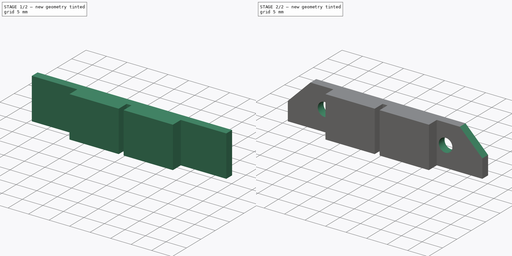
[diagram: build sequence overview — one tinted view per stage of 2, left to right]
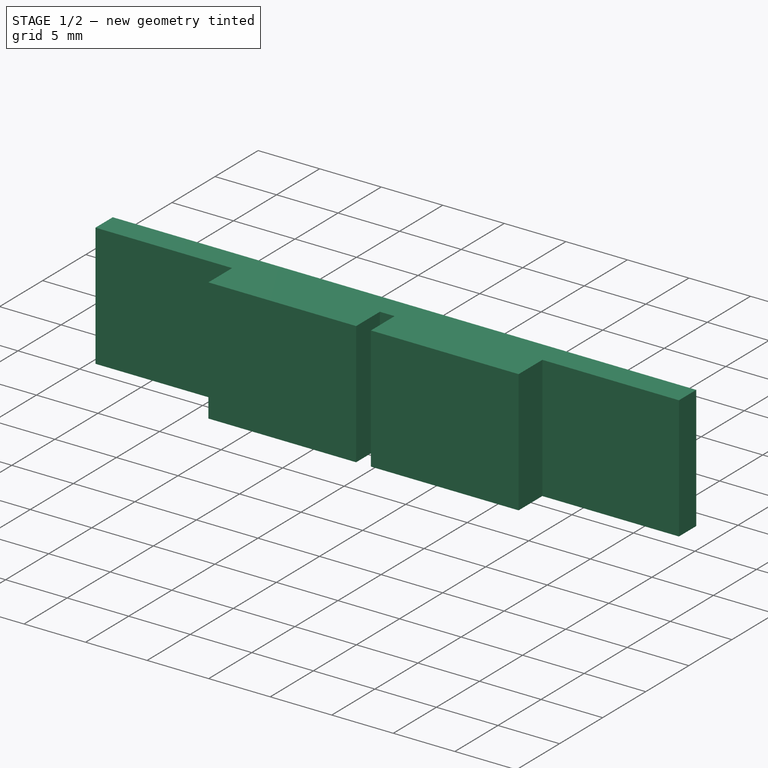
[diagram: stage 1 of 2 — iso view after this stage's code; geometry added in this stage tinted green]
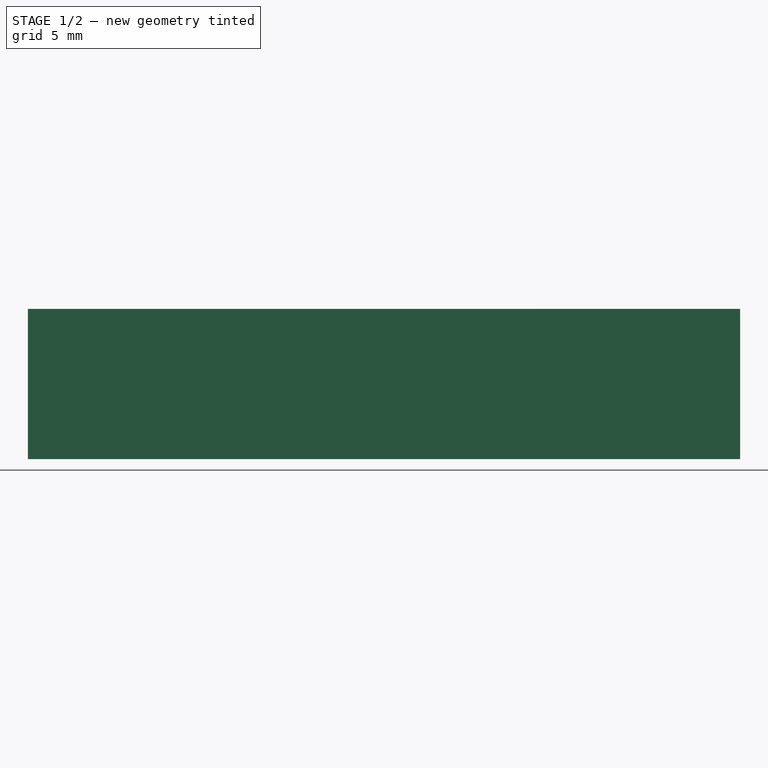
[diagram: stage 1 of 2 — front view after this stage's code; geometry added in this stage tinted green]
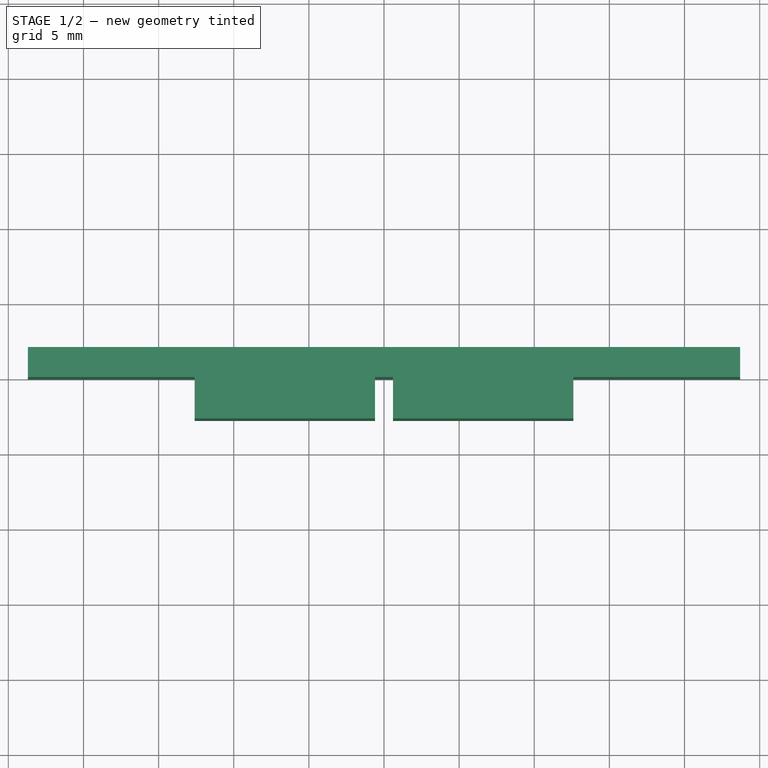
[diagram: stage 1 of 2 — top view after this stage's code; geometry added in this stage tinted green]
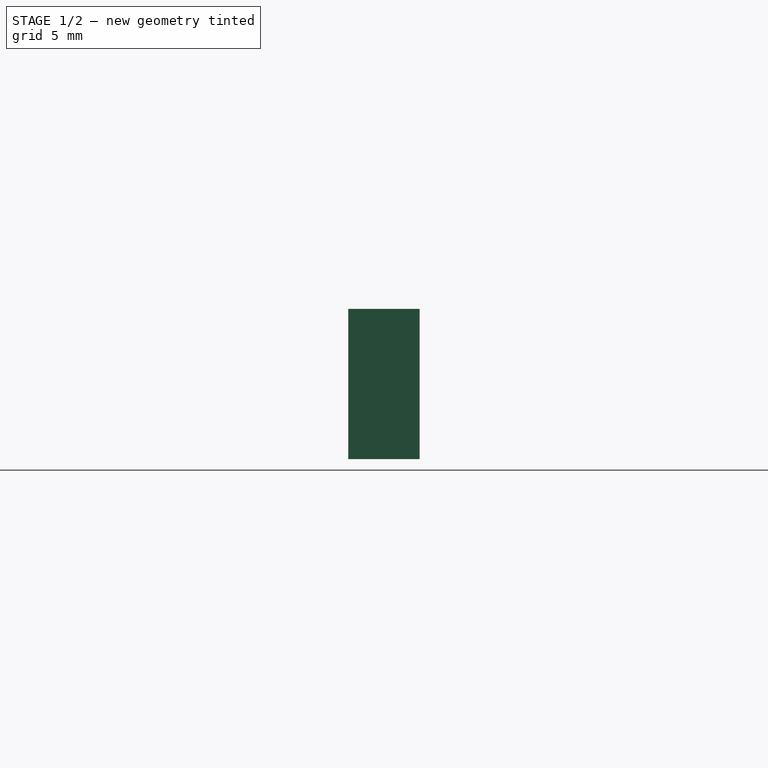
[diagram: stage 1 of 2 — right view after this stage's code; geometry added in this stage tinted green]
FCSTD DOCUMENT  (FreeCAD 0.18R16131 (Git))
Label: EC5Clip2
License: All rights reserved
LicenseURL: http://en.wikipedia.org/wiki/All_rights_reserved
objects: Sketcher::SketchObject×4, PartDesign::Pad×2, PartDesign::Pocket×2, PartDesign::Body×1, App::Part×1
note: 13 computed .brp shape members not serialized (recipe doc carries the construction recipe); baked Part::Feature solids carry a one-line shape summary decoded from their .brp

FEATURE [Sketcher::SketchObject] Sketch
  MapMode = 5
  Support = -> [XY_Plane001]
  sketch-geometry (4):
    g0: LineSegment StartX=-23.7 StartY=0 StartZ=0 EndX=23.7 EndY=0 EndZ=0
    g1: LineSegment StartX=23.7 StartY=0 StartZ=0 EndX=23.7 EndY=2 EndZ=0
    g2: LineSegment StartX=23.7 StartY=2 StartZ=0 EndX=-23.7 EndY=2 EndZ=0
    g3: LineSegment StartX=-23.7 StartY=2 StartZ=0 EndX=-23.7 EndY=0 EndZ=0
  constraints (11):
    c: Coincident(g0,g1)
    c: Coincident(g1,g2)
    c: Coincident(g2,g3)
    c: Coincident(g3,g0)
    c: Horizontal(g0)
    c: Vertical(g1)
    c: Distance(g2) = 47.4
    c: Symmetric(g2,g1,g-2)
    c: DistanceY(g-1,g2) = 2
    c: Vertical(g3)
    c: PointOnObject(g0,g-1)
FEATURE [PartDesign::Pad] Pad
  Length = 10
  Length2 = 100
  Profile = -> Sketch
  Reversed = true
  Type = 0
FEATURE [Sketcher::SketchObject] Sketch002
  MapMode = 5
  Placement = pos=(0,0,0) rot=(1,0,0;1.5708rad)
  Support = -> [XZ_Plane001]
  sketch-geometry (8):
    g0: LineSegment StartX=-12.6 StartY=0 StartZ=0 EndX=-0.6 EndY=0 EndZ=0
    g1: LineSegment StartX=-0.6 StartY=0 StartZ=0 EndX=-0.6 EndY=-10 EndZ=0
    g2: LineSegment StartX=-0.6 StartY=-10 StartZ=0 EndX=-12.6 EndY=-10 EndZ=0
    g3: LineSegment StartX=-12.6 StartY=-10 StartZ=0 EndX=-12.6 EndY=0 EndZ=0
    g4: LineSegment StartX=0.6 StartY=0 StartZ=0 EndX=12.6 EndY=0 EndZ=0
    g5: LineSegment StartX=12.6 StartY=0 StartZ=0 EndX=12.6 EndY=-10 EndZ=0
    g6: LineSegment StartX=12.6 StartY=-10 StartZ=0 EndX=0.6 EndY=-10 EndZ=0
    g7: LineSegment StartX=0.6 StartY=-10 StartZ=0 EndX=0.6 EndY=0 EndZ=0
  constraints (23):
    c: Coincident(g0,g1)
    c: Coincident(g1,g2)
    c: Coincident(g2,g3)
    c: Coincident(g3,g0)
    c: Horizontal(g0)
    c: Horizontal(g2)
    c: Vertical(g1)
    c: Vertical(g3)
    c: PointOnObject(g0,g-1)
    c: Coincident(g4,g5)
    c: Coincident(g5,g6)
    c: Coincident(g6,g7)
    c: Coincident(g7,g4)
    c: Horizontal(g4)
    c: Horizontal(g6)
    c: Vertical(g5)
    c: Vertical(g7)
    c: Symmetric(g0,g4,g-2)
    c: Equal(g0,g4)
    c: Equal(g3,g5)
    c: Distance(g3) = 10
    c: Distance(g0) = 12
    c: Distance(g0,g4) = 1.2
FEATURE [Sketcher::SketchObject] Sketch003
  MapMode = 5
  Placement = pos=(0,0,0) rot=(1,0,0;1.5708rad)
  Support = -> [XZ_Plane001]
  sketch-geometry (2):
    g0: Circle CenterX=-14.75 CenterY=-5 CenterZ=0 NormalX=0 NormalY=0 NormalZ=1 AngleXU=0 Radius=1.65
    g1: Circle CenterX=14.75 CenterY=-5 CenterZ=0 NormalX=0 NormalY=0 NormalZ=1 AngleXU=0 Radius=1.65
  constraints (5):
    c: Symmetric(g0,g1,g-2)
    c: DistanceY(g-1,g1) = -5
    c: Radius(g0) = 1.65
    c: Equal(g0,g1)
    c: Distance(g0,g1) = 29.5
FEATURE [Sketcher::SketchObject] Sketch004
  MapMode = 5
  Placement = pos=(0,0,0) rot=(1,0,0;1.5708rad)
  Support = -> [XZ_Plane001]
  sketch-geometry (6):
    g0: LineSegment StartX=-18.2 StartY=0 StartZ=0 EndX=-23.7 EndY=-5.5 EndZ=0
    g1: LineSegment StartX=-23.7 StartY=-5.5 StartZ=0 EndX=-23.7 EndY=0 EndZ=0
    g2: LineSegment StartX=-23.7 StartY=0 StartZ=0 EndX=-18.2 EndY=0 EndZ=0
    g3: LineSegment StartX=18.2 StartY=0 StartZ=0 EndX=23.7 EndY=0 EndZ=0
    g4: LineSegment StartX=18.2 StartY=0 StartZ=0 EndX=23.7 EndY=-5.5 EndZ=0
    g5: LineSegment StartX=23.7 StartY=0 StartZ=0 EndX=23.7 EndY=-5.5 EndZ=0
  constraints (17):
    c: PointOnObject(g0,g-1)
    c: Coincident(g1,g0)
    c: PointOnObject(g1,g-1)
    c: Vertical(g1)
    c: Coincident(g2,g1)
    c: Coincident(g2,g0)
    c: PointOnObject(g3,g-1)
    c: Coincident(g4,g3)
    c: Coincident(g5,g3)
    c: Coincident(g5,g4)
    c: Vertical(g5)
    c: Symmetric(g3,g0,g-2)
    c: Equal(g2,g3)
    c: Equal(g1,g5)
    c: Equal(g2,g1)
    c: Distance(g0,g3) = 36.4
    c: Distance(g2) = 5.5
FEATURE [PartDesign::Pad] Pad001
  BaseFeature = -> Pad
  Length = 2.75
  Length2 = 100
  Profile = -> Sketch002
  Type = 0
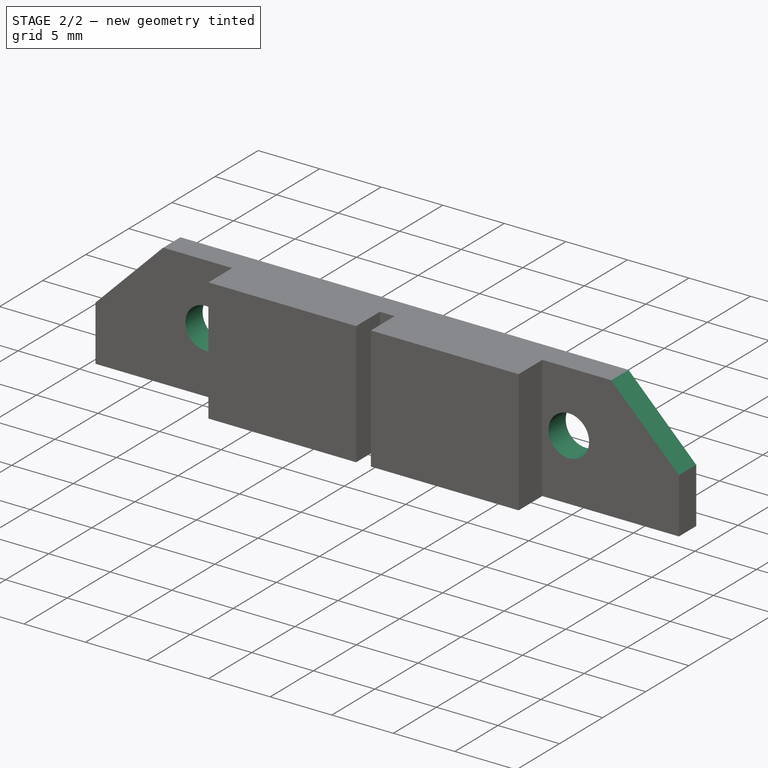
[diagram: stage 2 of 2 — iso view after this stage's code; geometry added in this stage tinted green]
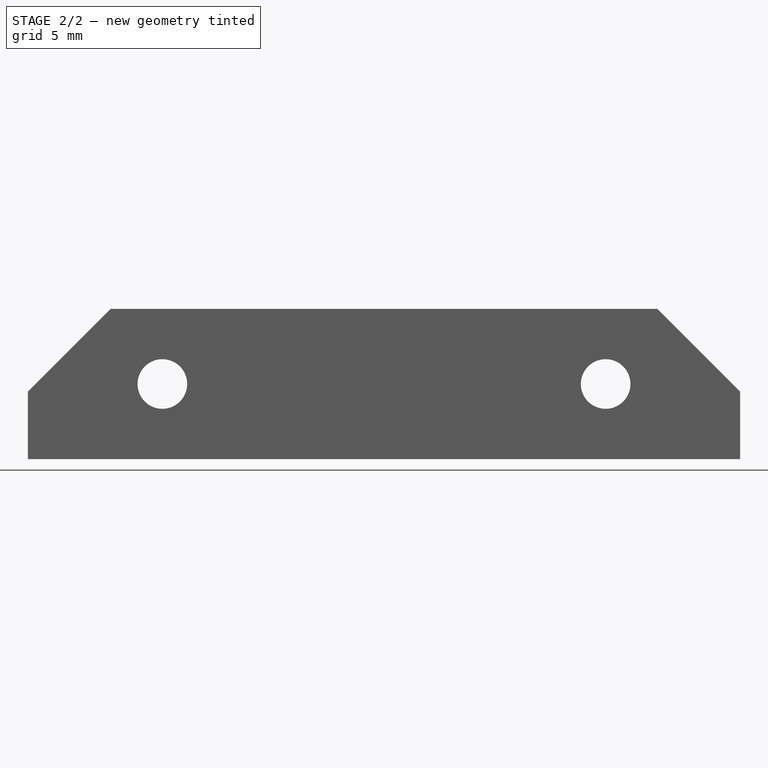
[diagram: stage 2 of 2 — front view after this stage's code; geometry added in this stage tinted green]
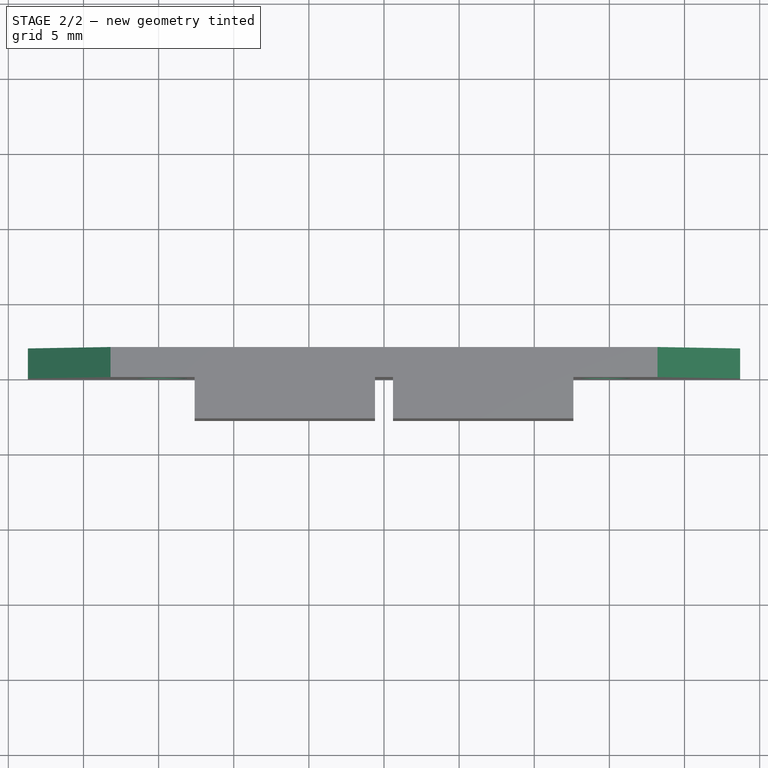
[diagram: stage 2 of 2 — top view after this stage's code; geometry added in this stage tinted green]
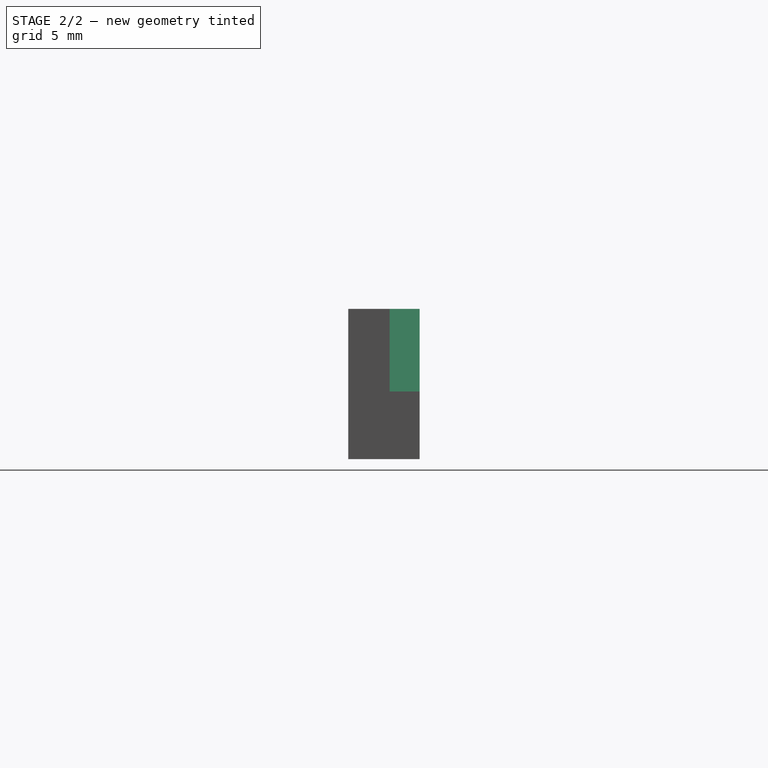
[diagram: stage 2 of 2 — right view after this stage's code; geometry added in this stage tinted green]
FEATURE [PartDesign::Pocket] Pocket
  BaseFeature = -> Pad001
  Length = 5
  Length2 = 100
  Midplane = true
  Profile = -> Sketch003
  Type = 1
FEATURE [PartDesign::Pocket] Pocket001
  BaseFeature = -> Pocket
  Length = 5
  Length2 = 100
  Midplane = true
  Profile = -> Sketch004
  Type = 1
FEATURE [PartDesign::Body] Body
  Group = -> [Sketch,Pad,Sketch002,Sketch003,Sketch004,Pad001,Pocket,Pocket001]
  Origin = -> Origin001
  Tip = -> Pocket001
FEATURE [App::Part] Part
  Group = -> [Body]
  Origin = -> Origin
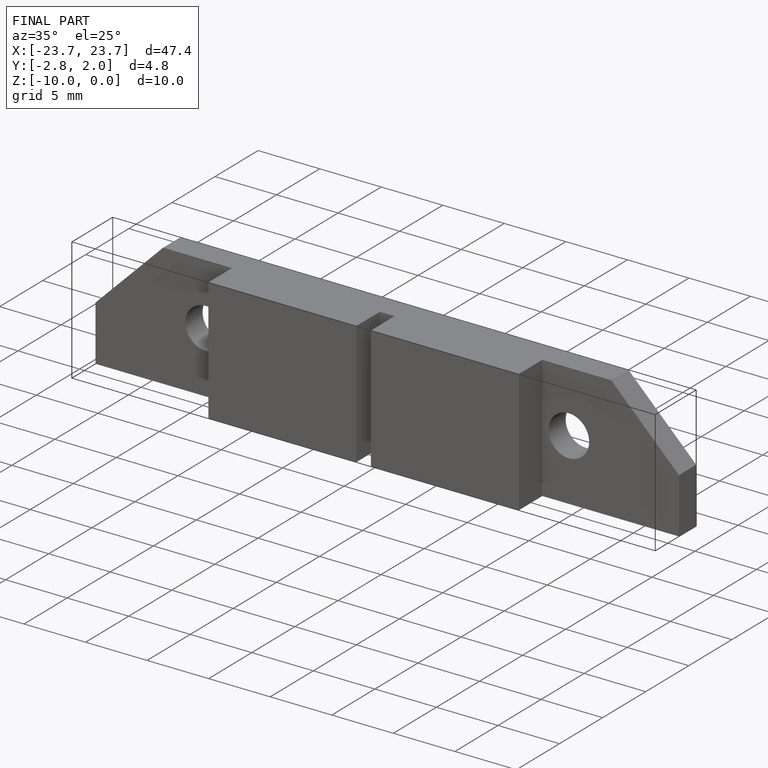
[diagram: finished part — iso view with bounding-box wireframe]
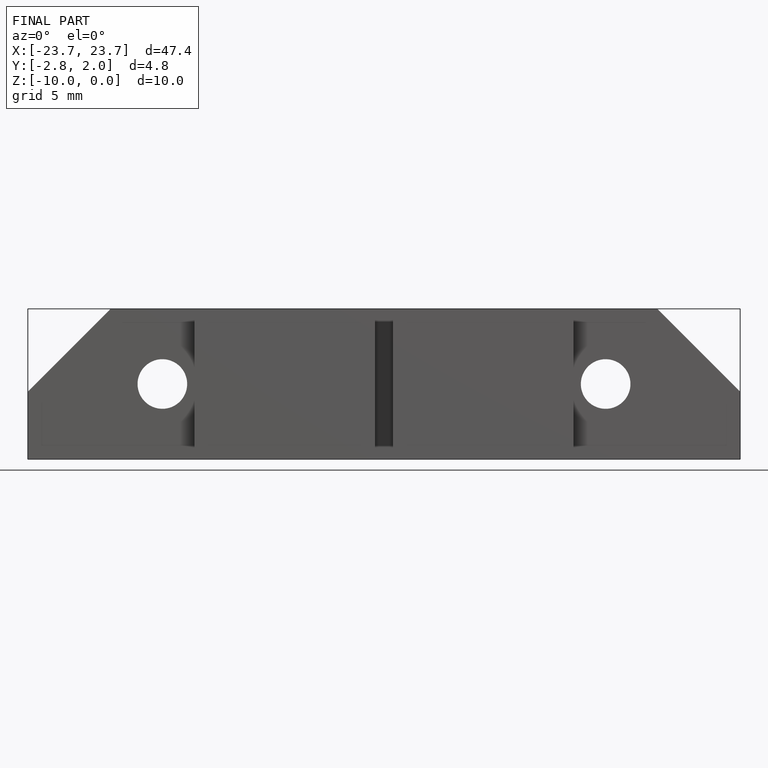
[diagram: finished part — front view with bounding-box wireframe]
